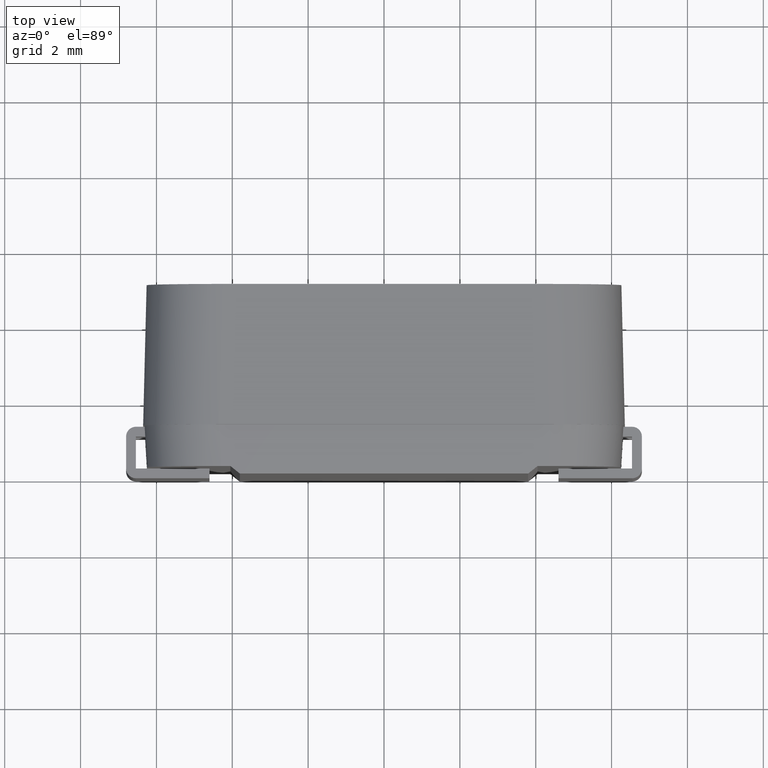
[diagram: clean part render]
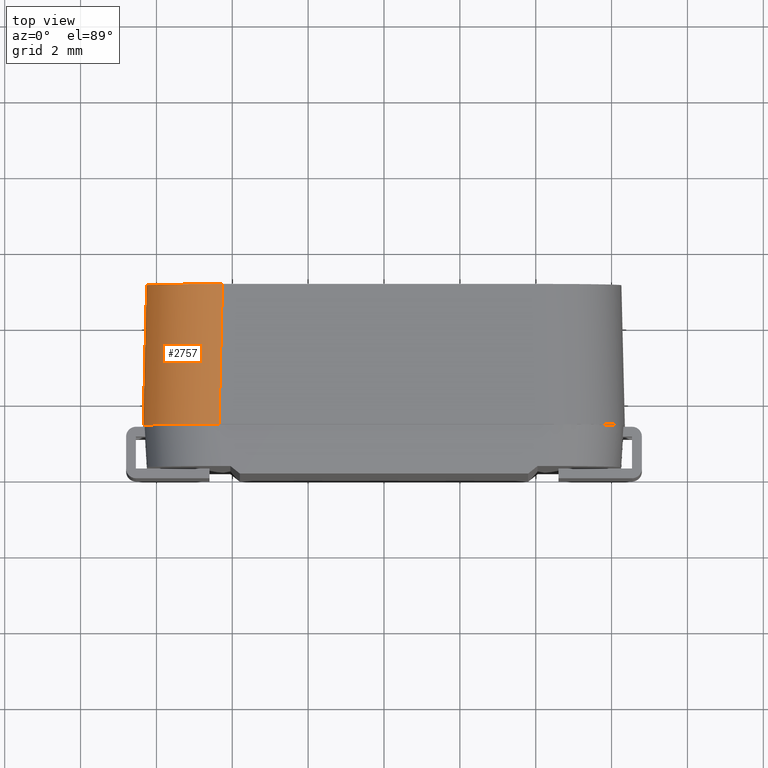
[diagram: same view with one face highlighted and labeled with its STEP entity id]
A machine part, top view. The second image highlights one B-rep face of the part: STEP entity #2757.
In plain terms, the highlighted cylindrical surface (partial cylindrical patch) has radius 2 mm, axis along (-0.0246, -0.9994, 0.0246).
Its self-contained STEP definition (entity closure, byte-faithful):
#4 = ORIENTED_EDGE ( 'NONE', *, *, #2342, .F. ) ;
#299 = DIRECTION ( 'NONE',  ( 0.0000000000000000000, -0.02460665860498179383, -0.9996972103353585215 ) ) ;
#312 = CARTESIAN_POINT ( 'NONE',  ( -4.259533366766152795, 5.000000000000000000, 6.258927787436864953 ) ) ;
#412 = CARTESIAN_POINT ( 'NONE',  ( -4.351815455388874376, 1.250846242838508982, 6.351209876059589199 ) ) ;
#542 = CARTESIAN_POINT ( 'NONE',  ( -6.350000000000000533, 1.300000000000000044, 4.350605579329281269 ) ) ;
#680 = CARTESIAN_POINT ( 'NONE',  ( -6.350000000000000533, 1.300000000000000044, 4.350605579329281269 ) ) ;
#965 = EDGE_LOOP ( 'NONE', ( #2651, #2644, #3793, #4 ) ) ;
#1031 = VERTEX_POINT ( 'NONE', #542 ) ;
#1097 = VERTEX_POINT ( 'NONE', #1484 ) ;
#1147 = DIRECTION ( 'NONE',  ( -0.02459921247229895566, -0.9993946955490036199, 0.02459921247229895913 ) ) ;
#1484 = CARTESIAN_POINT ( 'NONE',  ( -4.259533366766152795, 5.000000000000000000, 6.258927787436864953 ) ) ;
#1800 = LINE ( 'NONE', #412, #2873 ) ;
#1819 = EDGE_CURVE ( 'NONE', #1031, #2444, #4437, .T. ) ;
#1894 = CARTESIAN_POINT ( 'NONE',  ( -6.343524836130524314, 1.563067138074139439, 4.344130415459805050 ) ) ;
#2040 = CARTESIAN_POINT ( 'NONE',  ( -4.351815455388875264, 1.201632925628545401, 4.351815455388872600 ) ) ;
#2104 = CARTESIAN_POINT ( 'NONE',  ( -6.258927787436867618, 5.000000000000000000, 4.259533366766144802 ) ) ;
#2291 = DIRECTION ( 'NONE',  ( 0.02459921247229895566, 0.9993946955490036199, -0.02459921247229896260 ) ) ;
#2342 = EDGE_CURVE ( 'NONE', #1097, #2952, #1800, .T. ) ;
#2444 = VERTEX_POINT ( 'NONE', #2104 ) ;
#2460 = CYLINDRICAL_SURFACE ( 'NONE', #2492, 1.999999999999999778 ) ;
#2492 = AXIS2_PLACEMENT_3D ( 'NONE', #2040, #1147, #299 ) ;
#2604 = CARTESIAN_POINT ( 'NONE',  ( -4.350605579329283934, 1.300000000000000044, 6.349999999999997868 ) ) ;
#2644 = ORIENTED_EDGE ( 'NONE', *, *, #1819, .F. ) ;
#2651 = ORIENTED_EDGE ( 'NONE', *, *, #5862, .F. ) ;
#2757 = ADVANCED_FACE ( 'NONE', ( #5005 ), #2460, .T. ) ;
#2873 = VECTOR ( 'NONE', #5827, 999.9999999999998863 ) ;
#2952 = VERTEX_POINT ( 'NONE', #2604 ) ;
#3018 = CARTESIAN_POINT ( 'NONE',  ( -6.258927787436867618, 5.000000000000000000, 4.259533366766144802 ) ) ;
#3102 = VECTOR ( 'NONE', #2291, 999.9999999999998863 ) ;
#3401 = CARTESIAN_POINT ( 'NONE',  ( -5.521970537619701247, 1.299999999999999822, 6.349999999999999645 ) ) ;
#3508 = CARTESIAN_POINT ( 'NONE',  ( -6.258927787436870283, 5.000000000000000000, 5.430898325056563891 ) ) ;
#3793 = ORIENTED_EDGE ( 'NONE', *, *, #5709, .F. ) ;
#3848 = CARTESIAN_POINT ( 'NONE',  ( -4.350605579329283934, 1.300000000000000044, 6.349999999999997868 ) ) ;
#4437 = LINE ( 'NONE', #1894, #3102 ) ;
#4734 = CARTESIAN_POINT ( 'NONE',  ( -6.350000000000004086, 1.299999999999999822, 5.521970537619701247 ) ) ;
#5005 = FACE_OUTER_BOUND ( 'NONE', #965, .T. ) ;
#5048 =( BOUNDED_CURVE ( )  B_SPLINE_CURVE ( 3, ( #3018, #3508, #5771, #312 ),
 .UNSPECIFIED., .F., .F. ) 
 B_SPLINE_CURVE_WITH_KNOTS ( ( 4, 4 ),
 ( 5.498089887624485250, 7.068280726734684549 ),
 .UNSPECIFIED. ) 
 CURVE ( )  GEOMETRIC_REPRESENTATION_ITEM ( )  RATIONAL_B_SPLINE_CURVE ( ( 1.000000000000000000, 0.8048805473350940654, 0.8048805473350940654, 1.000000000000000000 ) ) 
 REPRESENTATION_ITEM ( '' )  );
#5661 =( BOUNDED_CURVE ( )  B_SPLINE_CURVE ( 3, ( #3848, #3401, #4734, #680 ),
 .UNSPECIFIED., .F., .T. ) 
 B_SPLINE_CURVE_WITH_KNOTS ( ( 4, 4 ),
 ( 5.498089887624487027, 7.068280726734685437 ),
 .UNSPECIFIED. ) 
 CURVE ( )  GEOMETRIC_REPRESENTATION_ITEM ( )  RATIONAL_B_SPLINE_CURVE ( ( 1.000000000000000000, 0.8048805473350941764, 0.8048805473350941764, 1.000000000000000000 ) ) 
 REPRESENTATION_ITEM ( '' )  );
#5709 = EDGE_CURVE ( 'NONE', #2952, #1031, #5661, .T. ) ;
#5771 = CARTESIAN_POINT ( 'NONE',  ( -5.430898325056572773, 5.000000000000000000, 6.258927787436866730 ) ) ;
#5827 = DIRECTION ( 'NONE',  ( -0.02459921247229895913, -0.9993946955490036199, 0.02459921247229895913 ) ) ;
#5862 = EDGE_CURVE ( 'NONE', #2444, #1097, #5048, .T. ) ;